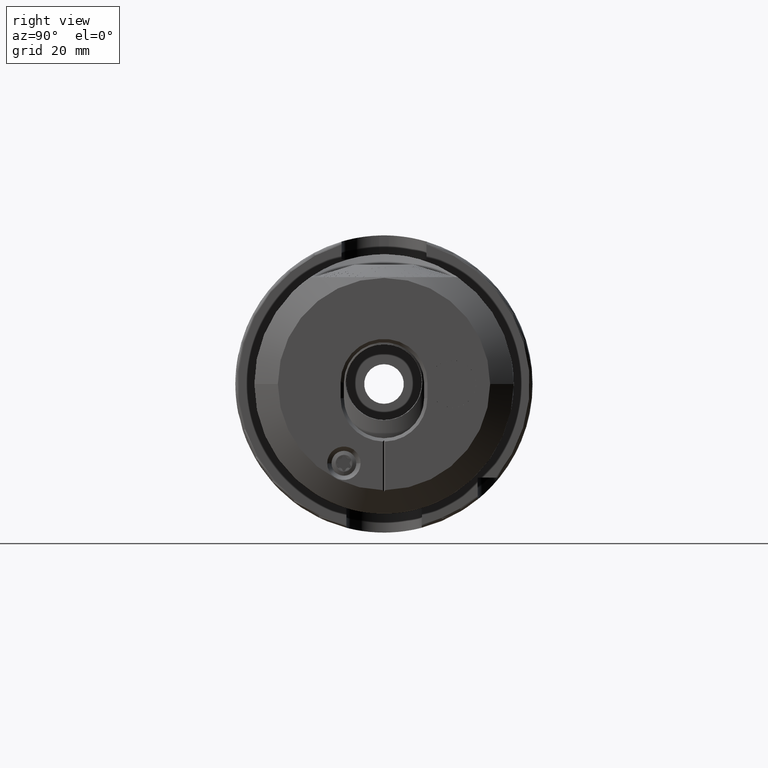
[diagram: clean part render]
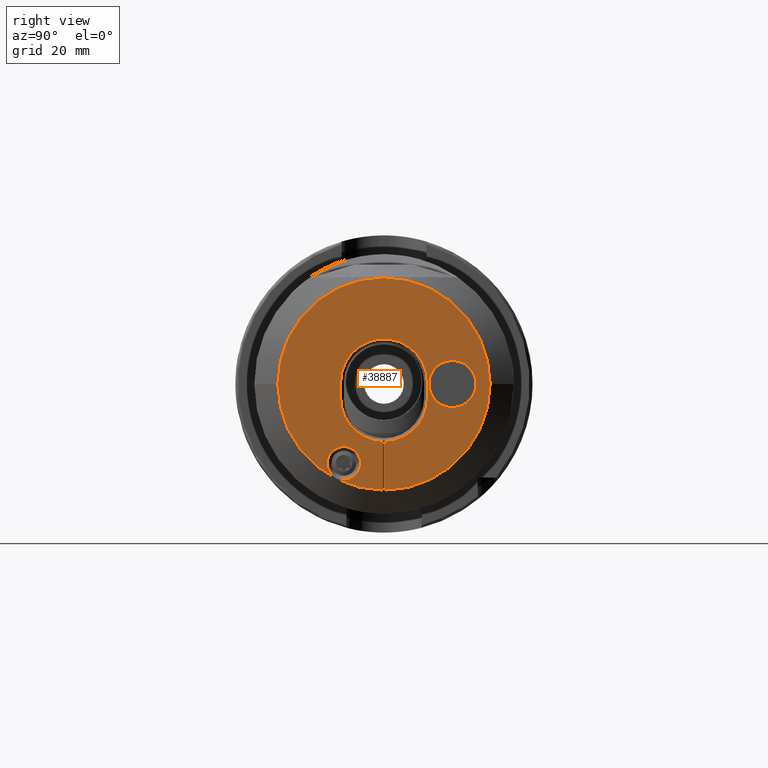
[diagram: same view with one face highlighted and labeled with its STEP entity id]
A machine part, right view. The second image highlights one B-rep face of the part: STEP entity #38887.
In plain terms, the highlighted planar face has unit normal (1, 0, 0).
Its self-contained STEP definition (entity closure, byte-faithful):
#166 = DIRECTION ( 'NONE',  ( 1.000000000000000000, -0.0000000000000000000, -0.0000000000000000000 ) ) ;
#1027 = CARTESIAN_POINT ( 'NONE',  ( 95.00000000000000000, 2.547451579836723300E-015, 0.0000000000000000000 ) ) ;
#1132 = AXIS2_PLACEMENT_3D ( 'NONE', #2824, #166, #24472 ) ;
#1164 = PLANE ( 'NONE',  #37768 ) ;
#1516 = CARTESIAN_POINT ( 'NONE',  ( 95.00000000000000000, -0.2500000000000000000, -12.19660263358159800 ) ) ;
#1703 = VERTEX_POINT ( 'NONE', #3005 ) ;
#1915 = DIRECTION ( 'NONE',  ( 1.000000000000000000, 1.768302171161740500E-016, -0.0000000000000000000 ) ) ;
#2703 = CARTESIAN_POINT ( 'NONE',  ( 95.00000000000000000, -9.199999999999990400, 0.3499999999999993700 ) ) ;
#2824 = CARTESIAN_POINT ( 'NONE',  ( 95.00000000000000000, 14.50000000000001200, 0.0000000000000000000 ) ) ;
#2920 = VERTEX_POINT ( 'NONE', #35739 ) ;
#3005 = CARTESIAN_POINT ( 'NONE',  ( 95.00000000000000000, 0.2499999999999999400, -12.19660263358160000 ) ) ;
#3083 = VERTEX_POINT ( 'NONE', #20801 ) ;
#3540 = VECTOR ( 'NONE', #17238, 1000.000000000000000 ) ;
#3567 = VERTEX_POINT ( 'NONE', #30898 ) ;
#4278 = CARTESIAN_POINT ( 'NONE',  ( 95.00000000000000000, -22.50148197640261600, 0.0000000000000000000 ) ) ;
#4312 = ORIENTED_EDGE ( 'NONE', *, *, #27494, .T. ) ;
#4697 = EDGE_CURVE ( 'NONE', #37219, #13827, #21720, .T. ) ;
#5434 = ORIENTED_EDGE ( 'NONE', *, *, #8304, .T. ) ;
#7296 = EDGE_CURVE ( 'NONE', #3083, #25282, #19708, .T. ) ;
#7926 = CARTESIAN_POINT ( 'NONE',  ( 95.00000000000000000, -8.499999999999984000, -16.80000000000000100 ) ) ;
#8080 = CIRCLE ( 'NONE', #20583, 22.50148197640262300 ) ;
#8304 = EDGE_CURVE ( 'NONE', #22708, #25288, #35171, .T. ) ;
#8951 = CARTESIAN_POINT ( 'NONE',  ( 95.00000000000000000, 1.163414459189985600E-014, -2.999999999999999600 ) ) ;
#9085 = DIRECTION ( 'NONE',  ( -1.000000000000000000, -1.224646799147353200E-016, 0.0000000000000000000 ) ) ;
#9112 = ORIENTED_EDGE ( 'NONE', *, *, #17155, .T. ) ;
#9341 = FACE_BOUND ( 'NONE', #29629, .T. ) ;
#9397 = DIRECTION ( 'NONE',  ( -0.0000000000000000000, -0.0000000000000000000, 1.000000000000000000 ) ) ;
#9638 = DIRECTION ( 'NONE',  ( 1.000000000000000000, 1.224646799147353200E-016, -0.0000000000000000000 ) ) ;
#9687 = EDGE_CURVE ( 'NONE', #13827, #22708, #8080, .T. ) ;
#9752 = ORIENTED_EDGE ( 'NONE', *, *, #33699, .F. ) ;
#9840 = DIRECTION ( 'NONE',  ( 1.000000000000000000, 1.224646799147353200E-016, -0.0000000000000000000 ) ) ;
#9904 = DIRECTION ( 'NONE',  ( 0.0000000000000000000, 1.000000000000000000, 0.0000000000000000000 ) ) ;
#10494 = ORIENTED_EDGE ( 'NONE', *, *, #7296, .T. ) ;
#10718 = CIRCLE ( 'NONE', #1132, 4.999999999999997300 ) ;
#11075 = AXIS2_PLACEMENT_3D ( 'NONE', #7926, #1915, #26250 ) ;
#11178 = CARTESIAN_POINT ( 'NONE',  ( 95.00000000000000000, -8.499999999999984000, -16.80000000000000100 ) ) ;
#11264 = FACE_BOUND ( 'NONE', #13176, .T. ) ;
#11462 = EDGE_CURVE ( 'NONE', #2920, #13289, #22294, .T. ) ;
#11694 = CIRCLE ( 'NONE', #18963, 9.199999999999997500 ) ;
#11818 = DIRECTION ( 'NONE',  ( 0.0000000000000000000, 1.000000000000000000, 0.0000000000000000000 ) ) ;
#12071 = DIRECTION ( 'NONE',  ( -1.000000000000000000, -1.224646799147353200E-016, 0.0000000000000000000 ) ) ;
#12635 = DIRECTION ( 'NONE',  ( 0.0000000000000000000, 1.000000000000000000, 0.0000000000000000000 ) ) ;
#13176 = EDGE_LOOP ( 'NONE', ( #17740, #26465 ) ) ;
#13289 = VERTEX_POINT ( 'NONE', #35799 ) ;
#13480 = VERTEX_POINT ( 'NONE', #15288 ) ;
#13827 = VERTEX_POINT ( 'NONE', #4278 ) ;
#14599 = EDGE_CURVE ( 'NONE', #13480, #16171, #33116, .T. ) ;
#15010 = ORIENTED_EDGE ( 'NONE', *, *, #16466, .F. ) ;
#15206 = DIRECTION ( 'NONE',  ( 0.0000000000000000000, 1.000000000000000000, 0.0000000000000000000 ) ) ;
#15288 = CARTESIAN_POINT ( 'NONE',  ( 95.00000000000000000, -9.199999999999992200, -3.000000000000001300 ) ) ;
#15963 = DIRECTION ( 'NONE',  ( 0.0000000000000000000, 1.000000000000000000, 0.0000000000000000000 ) ) ;
#16148 = DIRECTION ( 'NONE',  ( -1.000000000000000000, -1.224646799147353200E-016, 0.0000000000000000000 ) ) ;
#16171 = VERTEX_POINT ( 'NONE', #37094 ) ;
#16329 = ORIENTED_EDGE ( 'NONE', *, *, #30920, .T. ) ;
#16466 = EDGE_CURVE ( 'NONE', #34895, #38728, #21581, .T. ) ;
#17155 = EDGE_CURVE ( 'NONE', #25282, #1703, #35410, .T. ) ;
#17238 = DIRECTION ( 'NONE',  ( 0.0000000000000000000, 0.0000000000000000000, -1.000000000000000000 ) ) ;
#17407 = FACE_OUTER_BOUND ( 'NONE', #29386, .T. ) ;
#17589 = CARTESIAN_POINT ( 'NONE',  ( 95.00000000000000000, -4.956624327025937600, -16.80000000000000100 ) ) ;
#17740 = ORIENTED_EDGE ( 'NONE', *, *, #11462, .F. ) ;
#17896 = DIRECTION ( 'NONE',  ( 1.000000000000000000, 1.768302171161740500E-016, -0.0000000000000000000 ) ) ;
#18158 = DIRECTION ( 'NONE',  ( 0.0000000000000000000, 1.000000000000000000, 0.0000000000000000000 ) ) ;
#18963 = AXIS2_PLACEMENT_3D ( 'NONE', #21208, #12071, #18158 ) ;
#19461 = DIRECTION ( 'NONE',  ( 0.0000000000000000000, 1.000000000000000000, 0.0000000000000000000 ) ) ;
#19708 = LINE ( 'NONE', #26023, #3540 ) ;
#19783 = AXIS2_PLACEMENT_3D ( 'NONE', #11178, #17896, #11818 ) ;
#20583 = AXIS2_PLACEMENT_3D ( 'NONE', #30654, #9638, #9904 ) ;
#20680 = ORIENTED_EDGE ( 'NONE', *, *, #9687, .T. ) ;
#20801 = CARTESIAN_POINT ( 'NONE',  ( 95.00000000000000000, 9.200000000000009900, 0.3499999999999999800 ) ) ;
#21208 = CARTESIAN_POINT ( 'NONE',  ( 95.00000000000000000, 1.163414459189985600E-014, 0.3499999999999999800 ) ) ;
#21532 = CARTESIAN_POINT ( 'NONE',  ( 95.00000000000000000, -12.04337567297403300, -16.80000000000000100 ) ) ;
#21581 = CIRCLE ( 'NONE', #11075, 3.543375672974046900 ) ;
#21720 = CIRCLE ( 'NONE', #38637, 22.50148197640262300 ) ;
#22069 = DIRECTION ( 'NONE',  ( 1.000000000000000000, 1.224646799147353200E-016, -0.0000000000000000000 ) ) ;
#22294 = CIRCLE ( 'NONE', #29804, 4.999999999999997300 ) ;
#22584 = CARTESIAN_POINT ( 'NONE',  ( 95.00000000000000000, 2.547451579836723300E-015, 0.0000000000000000000 ) ) ;
#22708 = VERTEX_POINT ( 'NONE', #24882 ) ;
#23762 = AXIS2_PLACEMENT_3D ( 'NONE', #1027, #9840, #12635 ) ;
#24472 = DIRECTION ( 'NONE',  ( 0.0000000000000000000, 0.0000000000000000000, -1.000000000000000000 ) ) ;
#24882 = CARTESIAN_POINT ( 'NONE',  ( 95.00000000000000000, -0.2500000000000000000, -22.50009313612661900 ) ) ;
#25216 = DIRECTION ( 'NONE',  ( -1.224646799147353200E-016, 1.000000000000000000, 0.0000000000000000000 ) ) ;
#25282 = VERTEX_POINT ( 'NONE', #34953 ) ;
#25288 = VERTEX_POINT ( 'NONE', #1516 ) ;
#25766 = CARTESIAN_POINT ( 'NONE',  ( 95.00000000000000000, 22.50148197640263000, 2.755636787847333200E-015 ) ) ;
#25971 = VECTOR ( 'NONE', #35726, 1000.000000000000000 ) ;
#26023 = CARTESIAN_POINT ( 'NONE',  ( 95.00000000000000000, 9.200000000000006400, -2.999999999999999600 ) ) ;
#26250 = DIRECTION ( 'NONE',  ( 0.0000000000000000000, 1.000000000000000000, 0.0000000000000000000 ) ) ;
#26465 = ORIENTED_EDGE ( 'NONE', *, *, #31106, .F. ) ;
#26870 = DIRECTION ( 'NONE',  ( 1.000000000000000000, -0.0000000000000000000, -0.0000000000000000000 ) ) ;
#27006 = ORIENTED_EDGE ( 'NONE', *, *, #14599, .T. ) ;
#27017 = VECTOR ( 'NONE', #33283, 1000.000000000000000 ) ;
#27288 = EDGE_CURVE ( 'NONE', #3567, #1703, #31353, .T. ) ;
#27494 = EDGE_CURVE ( 'NONE', #25288, #13480, #28971, .T. ) ;
#28039 = CARTESIAN_POINT ( 'NONE',  ( 95.00000000000000000, 2.547451579836721300E-015, 0.0000000000000000000 ) ) ;
#28468 = VECTOR ( 'NONE', #9397, 1000.000000000000000 ) ;
#28971 = CIRCLE ( 'NONE', #37540, 9.200000000000001100 ) ;
#29386 = EDGE_LOOP ( 'NONE', ( #5434, #4312, #27006, #16329, #10494, #9112, #29562, #38115, #38439, #20680 ) ) ;
#29562 = ORIENTED_EDGE ( 'NONE', *, *, #27288, .F. ) ;
#29629 = EDGE_LOOP ( 'NONE', ( #15010, #9752 ) ) ;
#29804 = AXIS2_PLACEMENT_3D ( 'NONE', #36630, #26870, #36368 ) ;
#30487 = CARTESIAN_POINT ( 'NONE',  ( 95.00000000000000000, -0.2500000000000000000, -27.50000000000000000 ) ) ;
#30536 = CARTESIAN_POINT ( 'NONE',  ( 95.00000000000000000, 0.2500000000000000000, -27.50000000000000000 ) ) ;
#30654 = CARTESIAN_POINT ( 'NONE',  ( 95.00000000000000000, 2.547451579836723300E-015, 0.0000000000000000000 ) ) ;
#30898 = CARTESIAN_POINT ( 'NONE',  ( 95.00000000000000000, 0.2500000000000000000, -22.50009313612661900 ) ) ;
#30920 = EDGE_CURVE ( 'NONE', #16171, #3083, #11694, .T. ) ;
#30994 = DIRECTION ( 'NONE',  ( 1.000000000000000000, 1.224646799147353200E-016, -0.0000000000000000000 ) ) ;
#31106 = EDGE_CURVE ( 'NONE', #13289, #2920, #10718, .T. ) ;
#31353 = LINE ( 'NONE', #30536, #28468 ) ;
#31765 = EDGE_CURVE ( 'NONE', #3567, #37219, #36459, .T. ) ;
#33116 = LINE ( 'NONE', #2703, #25971 ) ;
#33283 = DIRECTION ( 'NONE',  ( -0.0000000000000000000, -0.0000000000000000000, 1.000000000000000000 ) ) ;
#33699 = EDGE_CURVE ( 'NONE', #38728, #34895, #36361, .T. ) ;
#34895 = VERTEX_POINT ( 'NONE', #17589 ) ;
#34953 = CARTESIAN_POINT ( 'NONE',  ( 95.00000000000000000, 9.200000000000006400, -2.999999999999999600 ) ) ;
#35171 = LINE ( 'NONE', #30487, #27017 ) ;
#35410 = CIRCLE ( 'NONE', #37066, 9.200000000000001100 ) ;
#35726 = DIRECTION ( 'NONE',  ( -6.341562842569456200E-032, 5.178279032766589600E-016, 1.000000000000000000 ) ) ;
#35739 = CARTESIAN_POINT ( 'NONE',  ( 95.00000000000000000, 14.50000000000001200, -4.999999999999997300 ) ) ;
#35799 = CARTESIAN_POINT ( 'NONE',  ( 95.00000000000000000, 14.50000000000001200, 4.999999999999997300 ) ) ;
#36361 = CIRCLE ( 'NONE', #19783, 3.543375672974046900 ) ;
#36368 = DIRECTION ( 'NONE',  ( 0.0000000000000000000, 0.0000000000000000000, -1.000000000000000000 ) ) ;
#36459 = CIRCLE ( 'NONE', #23762, 22.50148197640262300 ) ;
#36630 = CARTESIAN_POINT ( 'NONE',  ( 95.00000000000000000, 14.50000000000001200, 0.0000000000000000000 ) ) ;
#37066 = AXIS2_PLACEMENT_3D ( 'NONE', #8951, #9085, #15206 ) ;
#37094 = CARTESIAN_POINT ( 'NONE',  ( 95.00000000000000000, -9.199999999999985100, 0.3499999999999993700 ) ) ;
#37219 = VERTEX_POINT ( 'NONE', #25766 ) ;
#37473 = CARTESIAN_POINT ( 'NONE',  ( 95.00000000000000000, 1.163414459189985600E-014, -2.999999999999999600 ) ) ;
#37540 = AXIS2_PLACEMENT_3D ( 'NONE', #37473, #16148, #19461 ) ;
#37768 = AXIS2_PLACEMENT_3D ( 'NONE', #28039, #30994, #25216 ) ;
#38115 = ORIENTED_EDGE ( 'NONE', *, *, #31765, .T. ) ;
#38439 = ORIENTED_EDGE ( 'NONE', *, *, #4697, .T. ) ;
#38637 = AXIS2_PLACEMENT_3D ( 'NONE', #22584, #22069, #15963 ) ;
#38728 = VERTEX_POINT ( 'NONE', #21532 ) ;
#38887 = ADVANCED_FACE ( 'NONE', ( #11264, #17407, #9341 ), #1164, .T. ) ;